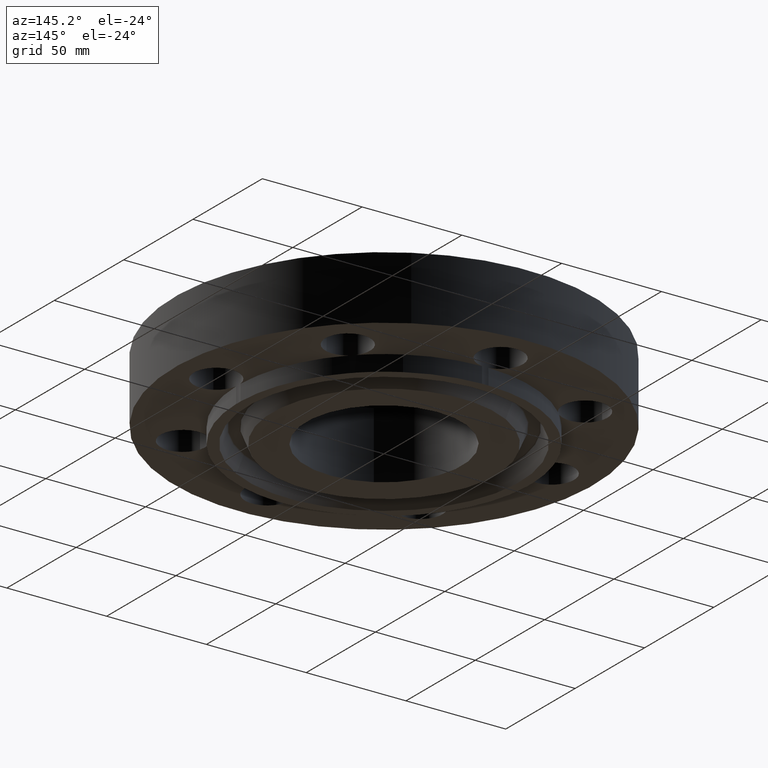
[diagram: clean part render]
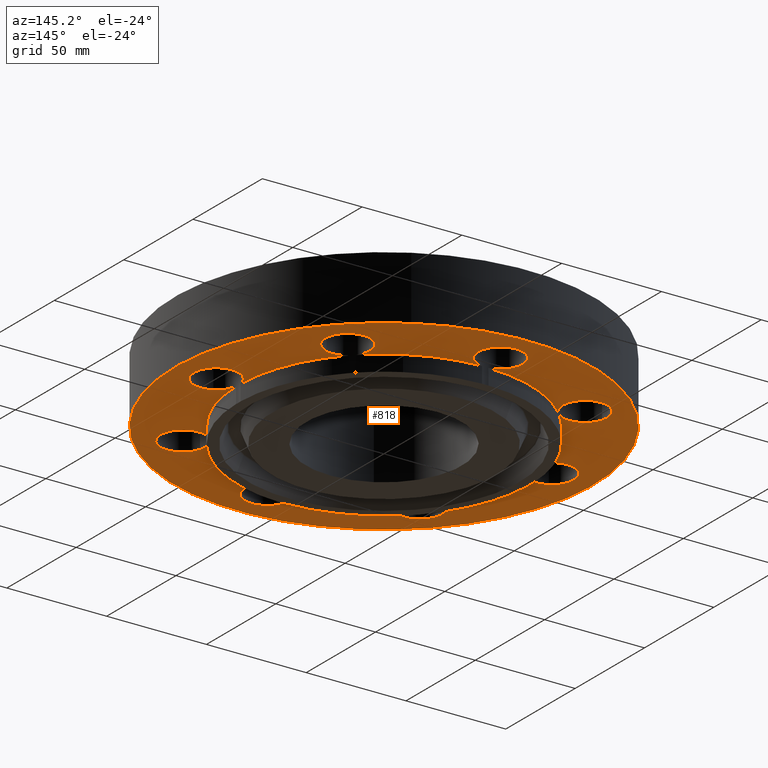
[diagram: same view with one face highlighted and labeled with its STEP entity id]
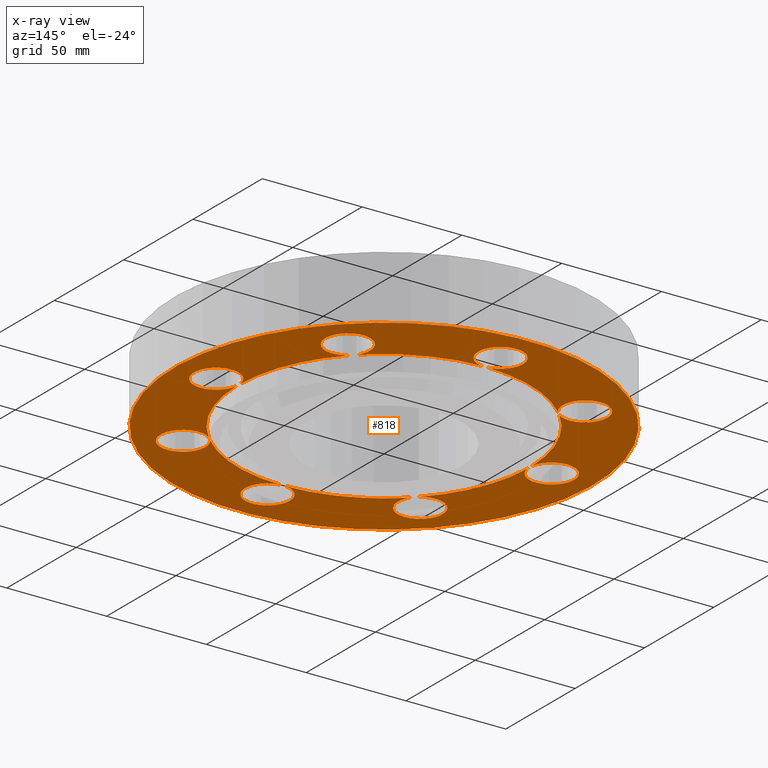
[diagram: x-ray of the same camera — body ghosted, the highlighted face saturated]
A machine part, auxiliary view. The second image highlights one B-rep face of the part: STEP entity #818.
The next image is the same camera in x-ray: the body ghosted, the highlighted face saturated — about 0% of this face is hidden behind the body in this view.
In plain terms, the highlighted planar face has unit normal (0, 0, -1).
Its self-contained STEP definition (entity closure, byte-faithful):
#363=AXIS2_PLACEMENT_3D('Circle Axis2P3D',#361,#362,$) ;
#403=AXIS2_PLACEMENT_3D('Circle Axis2P3D',#401,#402,$) ;
#422=AXIS2_PLACEMENT_3D('Circle Axis2P3D',#420,#421,$) ;
#441=AXIS2_PLACEMENT_3D('Circle Axis2P3D',#439,#440,$) ;
#467=AXIS2_PLACEMENT_3D('Circle Axis2P3D',#465,#466,$) ;
#500=AXIS2_PLACEMENT_3D('Circle Axis2P3D',#498,#499,$) ;
#519=AXIS2_PLACEMENT_3D('Circle Axis2P3D',#517,#518,$) ;
#538=AXIS2_PLACEMENT_3D('Circle Axis2P3D',#536,#537,$) ;
#564=AXIS2_PLACEMENT_3D('Circle Axis2P3D',#562,#563,$) ;
#590=AXIS2_PLACEMENT_3D('Circle Axis2P3D',#588,#589,$) ;
#610=AXIS2_PLACEMENT_3D('Plane Axis2P3D',#607,#608,#609) ;
#614=AXIS2_PLACEMENT_3D('Circle Axis2P3D',#612,#613,$) ;
#623=AXIS2_PLACEMENT_3D('Circle Axis2P3D',#621,#622,$) ;
#632=AXIS2_PLACEMENT_3D('Circle Axis2P3D',#630,#631,$) ;
#639=AXIS2_PLACEMENT_3D('Circle Axis2P3D',#637,#638,$) ;
#646=AXIS2_PLACEMENT_3D('Circle Axis2P3D',#644,#645,$) ;
#651=AXIS2_PLACEMENT_3D('Circle Axis2P3D',#649,#650,$) ;
#658=AXIS2_PLACEMENT_3D('Circle Axis2P3D',#656,#657,$) ;
#665=AXIS2_PLACEMENT_3D('Circle Axis2P3D',#663,#664,$) ;
#670=AXIS2_PLACEMENT_3D('Circle Axis2P3D',#668,#669,$) ;
#677=AXIS2_PLACEMENT_3D('Circle Axis2P3D',#675,#676,$) ;
#684=AXIS2_PLACEMENT_3D('Circle Axis2P3D',#682,#683,$) ;
#689=AXIS2_PLACEMENT_3D('Circle Axis2P3D',#687,#688,$) ;
#696=AXIS2_PLACEMENT_3D('Circle Axis2P3D',#694,#695,$) ;
#703=AXIS2_PLACEMENT_3D('Circle Axis2P3D',#701,#702,$) ;
#708=AXIS2_PLACEMENT_3D('Circle Axis2P3D',#706,#707,$) ;
#715=AXIS2_PLACEMENT_3D('Circle Axis2P3D',#713,#714,$) ;
#722=AXIS2_PLACEMENT_3D('Circle Axis2P3D',#720,#721,$) ;
#727=AXIS2_PLACEMENT_3D('Circle Axis2P3D',#725,#726,$) ;
#734=AXIS2_PLACEMENT_3D('Circle Axis2P3D',#732,#733,$) ;
#741=AXIS2_PLACEMENT_3D('Circle Axis2P3D',#739,#740,$) ;
#746=AXIS2_PLACEMENT_3D('Circle Axis2P3D',#744,#745,$) ;
#753=AXIS2_PLACEMENT_3D('Circle Axis2P3D',#751,#752,$) ;
#760=AXIS2_PLACEMENT_3D('Circle Axis2P3D',#758,#759,$) ;
#765=AXIS2_PLACEMENT_3D('Circle Axis2P3D',#763,#764,$) ;
#772=AXIS2_PLACEMENT_3D('Circle Axis2P3D',#770,#771,$) ;
#779=AXIS2_PLACEMENT_3D('Circle Axis2P3D',#777,#778,$) ;
#361=CARTESIAN_POINT('Axis2P3D Location',(0.,0.,2.79741234551E-016)) ;
#365=CARTESIAN_POINT('Vertex',(2.07605138692,1.98887798493,2.79741234551E-016)) ;
#367=CARTESIAN_POINT('Vertex',(2.87433912388,0.0616409036851,2.79741234551E-016)) ;
#391=CARTESIAN_POINT('Vertex',(2.07605138692,-1.98887798493,2.79741234551E-016)) ;
#398=CARTESIAN_POINT('Vertex',(2.87433912388,-0.0616409036851,2.79741234551E-016)) ;
#401=CARTESIAN_POINT('Axis2P3D Location',(0.,0.,2.79741234551E-016)) ;
#417=CARTESIAN_POINT('Vertex',(1.98887798493,-2.07605138692,2.79741234551E-016)) ;
#420=CARTESIAN_POINT('Axis2P3D Location',(0.,0.,2.79741234551E-016)) ;
#424=CARTESIAN_POINT('Vertex',(0.0616409036851,-2.87433912388,2.79741234551E-016)) ;
#439=CARTESIAN_POINT('Axis2P3D Location',(0.,0.,2.79741234551E-016)) ;
#443=CARTESIAN_POINT('Vertex',(-0.0616409036851,-2.87433912388,2.79741234551E-016)) ;
#445=CARTESIAN_POINT('Vertex',(-1.37834842349,-2.52304986544,2.79741234551E-016)) ;
#465=CARTESIAN_POINT('Axis2P3D Location',(0.,0.,2.79741234551E-016)) ;
#469=CARTESIAN_POINT('Vertex',(-1.98887798493,-2.07605138692,2.79741234551E-016)) ;
#488=CARTESIAN_POINT('Vertex',(-2.87433912388,-0.0616409036851,2.79741234551E-016)) ;
#495=CARTESIAN_POINT('Vertex',(-2.07605138692,-1.98887798493,2.79741234551E-016)) ;
#498=CARTESIAN_POINT('Axis2P3D Location',(0.,0.,2.79741234551E-016)) ;
#514=CARTESIAN_POINT('Vertex',(-2.87433912388,0.0616409036851,2.79741234551E-016)) ;
#517=CARTESIAN_POINT('Axis2P3D Location',(0.,0.,2.79741234551E-016)) ;
#521=CARTESIAN_POINT('Vertex',(-2.07605138692,1.98887798493,2.79741234551E-016)) ;
#536=CARTESIAN_POINT('Axis2P3D Location',(0.,0.,2.79741234551E-016)) ;
#540=CARTESIAN_POINT('Vertex',(-1.98887798493,2.07605138692,2.79741234551E-016)) ;
#542=CARTESIAN_POINT('Vertex',(-0.0616409036851,2.87433912388,2.79741234551E-016)) ;
#562=CARTESIAN_POINT('Axis2P3D Location',(0.,0.,2.79741234551E-016)) ;
#566=CARTESIAN_POINT('Vertex',(0.0616409036851,2.87433912388,2.79741234551E-016)) ;
#568=CARTESIAN_POINT('Vertex',(1.37834842349,2.52304986544,2.79741234551E-016)) ;
#588=CARTESIAN_POINT('Axis2P3D Location',(0.,0.,2.79741234551E-016)) ;
#592=CARTESIAN_POINT('Vertex',(1.98887798493,2.07605138692,2.79741234551E-016)) ;
#607=CARTESIAN_POINT('Axis2P3D Location',(0.,2.87500000001,0.)) ;
#612=CARTESIAN_POINT('Axis2P3D Location',(0.,0.,0.)) ;
#616=CARTESIAN_POINT('Vertex',(-1.97763034675,-3.62002806781,5.59482469102E-016)) ;
#618=CARTESIAN_POINT('Vertex',(1.97763034675,3.62002806781,5.59482469102E-016)) ;
#621=CARTESIAN_POINT('Axis2P3D Location',(0.,0.,0.)) ;
#630=CARTESIAN_POINT('Axis2P3D Location',(3.31000000001,0.,0.)) ;
#634=CARTESIAN_POINT('Vertex',(3.09905276303,-0.386136327233,0.)) ;
#637=CARTESIAN_POINT('Axis2P3D Location',(3.31000000001,0.,0.)) ;
#641=CARTESIAN_POINT('Vertex',(3.520947237,0.386136327233,0.)) ;
#644=CARTESIAN_POINT('Axis2P3D Location',(3.31000000001,0.,0.)) ;
#649=CARTESIAN_POINT('Axis2P3D Location',(2.34052344574,2.34052344574,0.)) ;
#653=CARTESIAN_POINT('Vertex',(2.46440083944,1.91832160854,0.)) ;
#656=CARTESIAN_POINT('Axis2P3D Location',(2.34052344574,2.34052344574,0.)) ;
#660=CARTESIAN_POINT('Vertex',(2.21664605203,2.76272528293,0.)) ;
#663=CARTESIAN_POINT('Axis2P3D Location',(2.34052344574,2.34052344574,0.)) ;
#668=CARTESIAN_POINT('Axis2P3D Location',(-8.74191357973E-017,3.31000000001,0.)) ;
#672=CARTESIAN_POINT('Vertex',(0.386136327233,3.09905276303,0.)) ;
#675=CARTESIAN_POINT('Axis2P3D Location',(8.74191357973E-017,3.31000000001,0.)) ;
#679=CARTESIAN_POINT('Vertex',(-0.386136327233,3.520947237,0.)) ;
#682=CARTESIAN_POINT('Axis2P3D Location',(-8.74191357973E-017,3.31000000001,0.)) ;
#687=CARTESIAN_POINT('Axis2P3D Location',(-2.34052344574,2.34052344574,0.)) ;
#691=CARTESIAN_POINT('Vertex',(-1.91832160854,2.46440083944,0.)) ;
#694=CARTESIAN_POINT('Axis2P3D Location',(-2.34052344574,2.34052344574,0.)) ;
#698=CARTESIAN_POINT('Vertex',(-2.76272528293,2.21664605203,0.)) ;
#701=CARTESIAN_POINT('Axis2P3D Location',(-2.34052344574,2.34052344574,0.)) ;
#706=CARTESIAN_POINT('Axis2P3D Location',(-3.31000000001,-5.59482469102E-016,0.)) ;
#710=CARTESIAN_POINT('Vertex',(-3.09905276303,0.386136327233,0.)) ;
#713=CARTESIAN_POINT('Axis2P3D Location',(-3.31000000001,-5.59482469102E-016,0.)) ;
#717=CARTESIAN_POINT('Vertex',(-3.520947237,-0.386136327233,0.)) ;
#720=CARTESIAN_POINT('Axis2P3D Location',(-3.31000000001,-5.59482469102E-016,0.)) ;
#725=CARTESIAN_POINT('Axis2P3D Location',(-2.34052344574,-2.34052344574,0.)) ;
#729=CARTESIAN_POINT('Vertex',(-2.46440083944,-1.91832160854,0.)) ;
#732=CARTESIAN_POINT('Axis2P3D Location',(-2.34052344574,-2.34052344574,0.)) ;
#736=CARTESIAN_POINT('Vertex',(-2.21664605203,-2.76272528293,0.)) ;
#739=CARTESIAN_POINT('Axis2P3D Location',(-2.34052344574,-2.34052344574,0.)) ;
#744=CARTESIAN_POINT('Axis2P3D Location',(5.59482469102E-016,-3.31000000001,0.)) ;
#748=CARTESIAN_POINT('Vertex',(-0.386136327233,-3.09905276303,0.)) ;
#751=CARTESIAN_POINT('Axis2P3D Location',(4.37095678986E-016,-3.31000000001,0.)) ;
#755=CARTESIAN_POINT('Vertex',(0.386136327233,-3.520947237,0.)) ;
#758=CARTESIAN_POINT('Axis2P3D Location',(5.59482469102E-016,-3.31000000001,0.)) ;
#763=CARTESIAN_POINT('Axis2P3D Location',(2.34052344574,-2.34052344574,0.)) ;
#767=CARTESIAN_POINT('Vertex',(1.91832160854,-2.46440083944,0.)) ;
#770=CARTESIAN_POINT('Axis2P3D Location',(2.34052344574,-2.34052344574,0.)) ;
#774=CARTESIAN_POINT('Vertex',(2.76272528293,-2.21664605203,0.)) ;
#777=CARTESIAN_POINT('Axis2P3D Location',(2.34052344574,-2.34052344574,0.)) ;
#362=DIRECTION('Axis2P3D Direction',(0.,0.,-0.0393700787402)) ;
#402=DIRECTION('Axis2P3D Direction',(0.,0.,-0.0393700787402)) ;
#421=DIRECTION('Axis2P3D Direction',(0.,0.,-0.0393700787402)) ;
#440=DIRECTION('Axis2P3D Direction',(0.,0.,-0.0393700787402)) ;
#466=DIRECTION('Axis2P3D Direction',(0.,0.,-0.0393700787402)) ;
#499=DIRECTION('Axis2P3D Direction',(0.,0.,-0.0393700787402)) ;
#518=DIRECTION('Axis2P3D Direction',(0.,0.,-0.0393700787402)) ;
#537=DIRECTION('Axis2P3D Direction',(0.,0.,-0.0393700787402)) ;
#563=DIRECTION('Axis2P3D Direction',(0.,0.,-0.0393700787402)) ;
#589=DIRECTION('Axis2P3D Direction',(0.,0.,-0.0393700787402)) ;
#608=DIRECTION('Axis2P3D Direction',(0.,0.,-0.0393700787402)) ;
#609=DIRECTION('Axis2P3D XDirection',(0.0393700787402,0.,0.)) ;
#613=DIRECTION('Axis2P3D Direction',(0.,0.,-0.0393700787402)) ;
#622=DIRECTION('Axis2P3D Direction',(0.,0.,-0.0393700787402)) ;
#631=DIRECTION('Axis2P3D Direction',(0.,0.,-0.0393700787402)) ;
#638=DIRECTION('Axis2P3D Direction',(0.,0.,-0.0393700787402)) ;
#645=DIRECTION('Axis2P3D Direction',(0.,0.,-0.0393700787402)) ;
#650=DIRECTION('Axis2P3D Direction',(0.,0.,-0.0393700787402)) ;
#657=DIRECTION('Axis2P3D Direction',(0.,0.,-0.0393700787402)) ;
#664=DIRECTION('Axis2P3D Direction',(0.,0.,-0.0393700787402)) ;
#669=DIRECTION('Axis2P3D Direction',(0.,0.,-0.0393700787402)) ;
#676=DIRECTION('Axis2P3D Direction',(0.,0.,-0.0393700787402)) ;
#683=DIRECTION('Axis2P3D Direction',(0.,0.,-0.0393700787402)) ;
#688=DIRECTION('Axis2P3D Direction',(0.,0.,-0.0393700787402)) ;
#695=DIRECTION('Axis2P3D Direction',(0.,0.,-0.0393700787402)) ;
#702=DIRECTION('Axis2P3D Direction',(0.,0.,-0.0393700787402)) ;
#707=DIRECTION('Axis2P3D Direction',(0.,0.,-0.0393700787402)) ;
#714=DIRECTION('Axis2P3D Direction',(0.,0.,-0.0393700787402)) ;
#721=DIRECTION('Axis2P3D Direction',(0.,0.,-0.0393700787402)) ;
#726=DIRECTION('Axis2P3D Direction',(0.,0.,-0.0393700787402)) ;
#733=DIRECTION('Axis2P3D Direction',(0.,0.,-0.0393700787402)) ;
#740=DIRECTION('Axis2P3D Direction',(0.,0.,-0.0393700787402)) ;
#745=DIRECTION('Axis2P3D Direction',(0.,0.,-0.0393700787402)) ;
#752=DIRECTION('Axis2P3D Direction',(0.,0.,-0.0393700787402)) ;
#759=DIRECTION('Axis2P3D Direction',(0.,0.,-0.0393700787402)) ;
#764=DIRECTION('Axis2P3D Direction',(0.,0.,-0.0393700787402)) ;
#771=DIRECTION('Axis2P3D Direction',(0.,0.,-0.0393700787402)) ;
#778=DIRECTION('Axis2P3D Direction',(0.,0.,-0.0393700787402)) ;
#627=ORIENTED_EDGE('',*,*,#620,.T.) ;
#628=ORIENTED_EDGE('',*,*,#625,.T.) ;
#783=ORIENTED_EDGE('',*,*,#405,.F.) ;
#784=ORIENTED_EDGE('',*,*,#636,.F.) ;
#785=ORIENTED_EDGE('',*,*,#643,.F.) ;
#786=ORIENTED_EDGE('',*,*,#648,.F.) ;
#787=ORIENTED_EDGE('',*,*,#369,.F.) ;
#788=ORIENTED_EDGE('',*,*,#655,.F.) ;
#789=ORIENTED_EDGE('',*,*,#662,.F.) ;
#790=ORIENTED_EDGE('',*,*,#667,.F.) ;
#791=ORIENTED_EDGE('',*,*,#594,.F.) ;
#792=ORIENTED_EDGE('',*,*,#570,.F.) ;
#793=ORIENTED_EDGE('',*,*,#674,.F.) ;
#794=ORIENTED_EDGE('',*,*,#681,.F.) ;
#795=ORIENTED_EDGE('',*,*,#686,.F.) ;
#796=ORIENTED_EDGE('',*,*,#544,.F.) ;
#797=ORIENTED_EDGE('',*,*,#693,.F.) ;
#798=ORIENTED_EDGE('',*,*,#700,.F.) ;
#799=ORIENTED_EDGE('',*,*,#705,.F.) ;
#800=ORIENTED_EDGE('',*,*,#523,.F.) ;
#801=ORIENTED_EDGE('',*,*,#712,.F.) ;
#802=ORIENTED_EDGE('',*,*,#719,.F.) ;
#803=ORIENTED_EDGE('',*,*,#724,.F.) ;
#804=ORIENTED_EDGE('',*,*,#502,.F.) ;
#805=ORIENTED_EDGE('',*,*,#731,.F.) ;
#806=ORIENTED_EDGE('',*,*,#738,.F.) ;
#807=ORIENTED_EDGE('',*,*,#743,.F.) ;
#808=ORIENTED_EDGE('',*,*,#471,.F.) ;
#809=ORIENTED_EDGE('',*,*,#447,.F.) ;
#810=ORIENTED_EDGE('',*,*,#750,.F.) ;
#811=ORIENTED_EDGE('',*,*,#757,.F.) ;
#812=ORIENTED_EDGE('',*,*,#762,.F.) ;
#813=ORIENTED_EDGE('',*,*,#426,.F.) ;
#814=ORIENTED_EDGE('',*,*,#769,.F.) ;
#815=ORIENTED_EDGE('',*,*,#776,.F.) ;
#816=ORIENTED_EDGE('',*,*,#781,.F.) ;
#817=FACE_BOUND('',#782,.T.) ;
#818=ADVANCED_FACE('PartBody',(#629,#817),#611,.T.) ;
#364=CIRCLE('generated circle',#363,2.87500000001) ;
#404=CIRCLE('generated circle',#403,2.87500000001) ;
#423=CIRCLE('generated circle',#422,2.87500000001) ;
#442=CIRCLE('generated circle',#441,2.87500000001) ;
#468=CIRCLE('generated circle',#467,2.87500000001) ;
#501=CIRCLE('generated circle',#500,2.87500000001) ;
#520=CIRCLE('generated circle',#519,2.87500000001) ;
#539=CIRCLE('generated circle',#538,2.87500000001) ;
#565=CIRCLE('generated circle',#564,2.87500000001) ;
#591=CIRCLE('generated circle',#590,2.87500000001) ;
#615=CIRCLE('generated circle',#614,4.12500000002) ;
#624=CIRCLE('generated circle',#623,4.12500000002) ;
#633=CIRCLE('generated circle',#632,0.440000000002) ;
#640=CIRCLE('generated circle',#639,0.440000000002) ;
#647=CIRCLE('generated circle',#646,0.440000000002) ;
#652=CIRCLE('generated circle',#651,0.440000000002) ;
#659=CIRCLE('generated circle',#658,0.440000000002) ;
#666=CIRCLE('generated circle',#665,0.440000000002) ;
#671=CIRCLE('generated circle',#670,0.440000000002) ;
#678=CIRCLE('generated circle',#677,0.440000000002) ;
#685=CIRCLE('generated circle',#684,0.440000000002) ;
#690=CIRCLE('generated circle',#689,0.440000000002) ;
#697=CIRCLE('generated circle',#696,0.440000000002) ;
#704=CIRCLE('generated circle',#703,0.440000000002) ;
#709=CIRCLE('generated circle',#708,0.440000000002) ;
#716=CIRCLE('generated circle',#715,0.440000000002) ;
#723=CIRCLE('generated circle',#722,0.440000000002) ;
#728=CIRCLE('generated circle',#727,0.440000000002) ;
#735=CIRCLE('generated circle',#734,0.440000000002) ;
#742=CIRCLE('generated circle',#741,0.440000000002) ;
#747=CIRCLE('generated circle',#746,0.440000000002) ;
#754=CIRCLE('generated circle',#753,0.440000000002) ;
#761=CIRCLE('generated circle',#760,0.440000000002) ;
#766=CIRCLE('generated circle',#765,0.440000000002) ;
#773=CIRCLE('generated circle',#772,0.440000000002) ;
#780=CIRCLE('generated circle',#779,0.440000000002) ;
#369=EDGE_CURVE('',#366,#368,#364,.T.) ;
#405=EDGE_CURVE('',#399,#392,#404,.T.) ;
#426=EDGE_CURVE('',#418,#425,#423,.T.) ;
#447=EDGE_CURVE('',#444,#446,#442,.T.) ;
#471=EDGE_CURVE('',#446,#470,#468,.T.) ;
#502=EDGE_CURVE('',#496,#489,#501,.T.) ;
#523=EDGE_CURVE('',#515,#522,#520,.T.) ;
#544=EDGE_CURVE('',#541,#543,#539,.T.) ;
#570=EDGE_CURVE('',#567,#569,#565,.T.) ;
#594=EDGE_CURVE('',#569,#593,#591,.T.) ;
#620=EDGE_CURVE('',#617,#619,#615,.T.) ;
#625=EDGE_CURVE('',#619,#617,#624,.T.) ;
#636=EDGE_CURVE('',#635,#399,#633,.T.) ;
#643=EDGE_CURVE('',#642,#635,#640,.T.) ;
#648=EDGE_CURVE('',#368,#642,#647,.T.) ;
#655=EDGE_CURVE('',#654,#366,#652,.T.) ;
#662=EDGE_CURVE('',#661,#654,#659,.T.) ;
#667=EDGE_CURVE('',#593,#661,#666,.T.) ;
#674=EDGE_CURVE('',#673,#567,#671,.T.) ;
#681=EDGE_CURVE('',#680,#673,#678,.T.) ;
#686=EDGE_CURVE('',#543,#680,#685,.T.) ;
#693=EDGE_CURVE('',#692,#541,#690,.T.) ;
#700=EDGE_CURVE('',#699,#692,#697,.T.) ;
#705=EDGE_CURVE('',#522,#699,#704,.T.) ;
#712=EDGE_CURVE('',#711,#515,#709,.T.) ;
#719=EDGE_CURVE('',#718,#711,#716,.T.) ;
#724=EDGE_CURVE('',#489,#718,#723,.T.) ;
#731=EDGE_CURVE('',#730,#496,#728,.T.) ;
#738=EDGE_CURVE('',#737,#730,#735,.T.) ;
#743=EDGE_CURVE('',#470,#737,#742,.T.) ;
#750=EDGE_CURVE('',#749,#444,#747,.T.) ;
#757=EDGE_CURVE('',#756,#749,#754,.T.) ;
#762=EDGE_CURVE('',#425,#756,#761,.T.) ;
#769=EDGE_CURVE('',#768,#418,#766,.T.) ;
#776=EDGE_CURVE('',#775,#768,#773,.T.) ;
#781=EDGE_CURVE('',#392,#775,#780,.T.) ;
#626=EDGE_LOOP('',(#627,#628)) ;
#782=EDGE_LOOP('',(#783,#784,#785,#786,#787,#788,#789,#790,#791,#792,#793,#794,#795,#796,#797,#798,#799,#800,#801,#802,#803,#804,#805,#806,#807,#808,#809,#810,#811,#812,#813,#814,#815,#816)) ;
#629=FACE_OUTER_BOUND('',#626,.T.) ;
#611=PLANE('',#610) ;
#366=VERTEX_POINT('',#365) ;
#368=VERTEX_POINT('',#367) ;
#392=VERTEX_POINT('',#391) ;
#399=VERTEX_POINT('',#398) ;
#418=VERTEX_POINT('',#417) ;
#425=VERTEX_POINT('',#424) ;
#444=VERTEX_POINT('',#443) ;
#446=VERTEX_POINT('',#445) ;
#470=VERTEX_POINT('',#469) ;
#489=VERTEX_POINT('',#488) ;
#496=VERTEX_POINT('',#495) ;
#515=VERTEX_POINT('',#514) ;
#522=VERTEX_POINT('',#521) ;
#541=VERTEX_POINT('',#540) ;
#543=VERTEX_POINT('',#542) ;
#567=VERTEX_POINT('',#566) ;
#569=VERTEX_POINT('',#568) ;
#593=VERTEX_POINT('',#592) ;
#617=VERTEX_POINT('',#616) ;
#619=VERTEX_POINT('',#618) ;
#635=VERTEX_POINT('',#634) ;
#642=VERTEX_POINT('',#641) ;
#654=VERTEX_POINT('',#653) ;
#661=VERTEX_POINT('',#660) ;
#673=VERTEX_POINT('',#672) ;
#680=VERTEX_POINT('',#679) ;
#692=VERTEX_POINT('',#691) ;
#699=VERTEX_POINT('',#698) ;
#711=VERTEX_POINT('',#710) ;
#718=VERTEX_POINT('',#717) ;
#730=VERTEX_POINT('',#729) ;
#737=VERTEX_POINT('',#736) ;
#749=VERTEX_POINT('',#748) ;
#756=VERTEX_POINT('',#755) ;
#768=VERTEX_POINT('',#767) ;
#775=VERTEX_POINT('',#774) ;